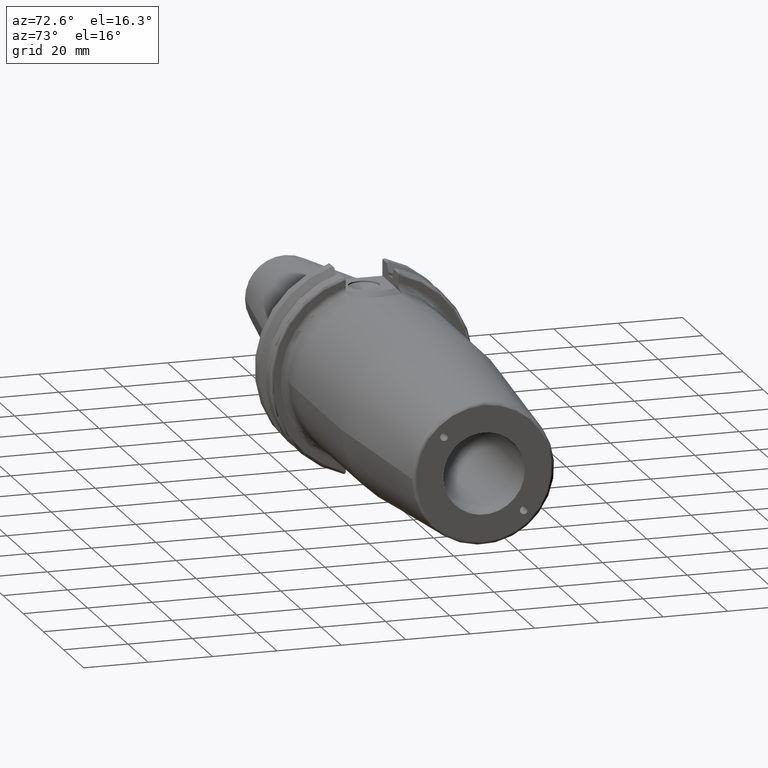
[diagram: clean part render]
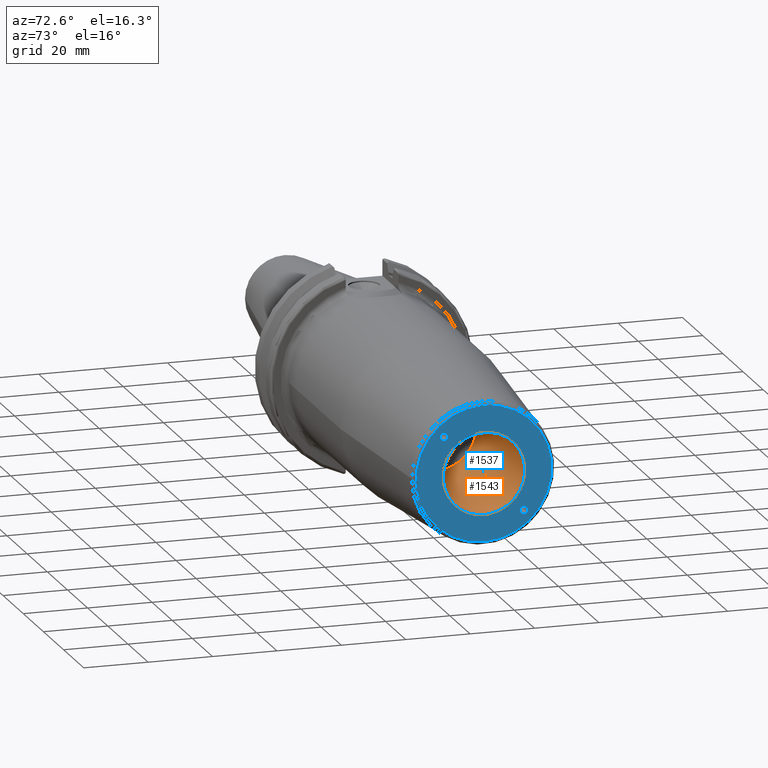
[diagram: same view with the hole feature highlighted: cylindrical wall and planar end face, labeled with their STEP entity ids]
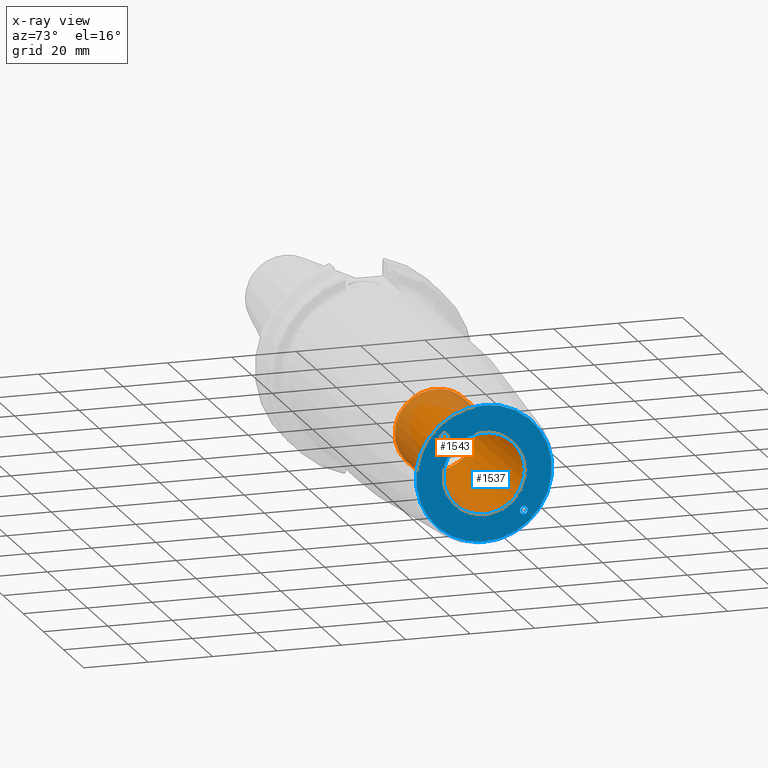
[diagram: x-ray of the same camera — body ghosted, the hole faces saturated]
A machine part, auxiliary view. The highlighted faces form one hole feature of diameter 25.4 mm: the cylindrical wall (entity #1543, orange) and its adjacent planar end face (entity #1537, blue) — they share a circular edge in the B-rep.
The next image is the same camera in x-ray (body ghosted, the hole faces saturated) — the bore reads through the body.
Wall:
#141=FACE_OUTER_BOUND('',#237,.T.);
#237=EDGE_LOOP('',(#1088,#1089,#1090,#1091));
#338=CIRCLE('',#1667,12.7);
#345=CIRCLE('',#1680,12.7);
#416=LINE('',#2543,#504);
#504=VECTOR('',#1922,12.7);
#639=VERTEX_POINT('',#2416);
#652=VERTEX_POINT('',#2542);
#804=EDGE_CURVE('',#639,#639,#338,.T.);
#822=EDGE_CURVE('',#639,#652,#416,.T.);
#823=EDGE_CURVE('',#652,#652,#345,.T.);
#1088=ORIENTED_EDGE('',*,*,#804,.T.);
#1089=ORIENTED_EDGE('',*,*,#822,.T.);
#1090=ORIENTED_EDGE('',*,*,#823,.F.);
#1091=ORIENTED_EDGE('',*,*,#822,.F.);
#1502=CYLINDRICAL_SURFACE('',#1679,12.7);
#1543=ADVANCED_FACE('',(#141),#1502,.F.);
#1667=AXIS2_PLACEMENT_3D('',#2417,#1892,#1893);
#1679=AXIS2_PLACEMENT_3D('',#2541,#1920,#1921);
#1680=AXIS2_PLACEMENT_3D('',#2544,#1923,#1924);
#1892=DIRECTION('center_axis',(1.,0.,0.));
#1893=DIRECTION('ref_axis',(0.,0.,-1.));
#1920=DIRECTION('center_axis',(1.,0.,0.));
#1921=DIRECTION('ref_axis',(0.,1.,0.));
#1922=DIRECTION('',(-1.,0.,0.));
#1923=DIRECTION('center_axis',(1.,0.,0.));
#1924=DIRECTION('ref_axis',(0.,0.,-1.));
#2416=CARTESIAN_POINT('',(130.,-12.7,-1.55530143491714E-15));
#2417=CARTESIAN_POINT('Origin',(130.,0.,0.));
#2541=CARTESIAN_POINT('Origin',(106.,0.,0.));
#2542=CARTESIAN_POINT('',(82.,-12.7,-1.55530143491714E-15));
#2543=CARTESIAN_POINT('',(106.,-12.7,-1.55530143491714E-15));
#2544=CARTESIAN_POINT('Origin',(82.,0.,0.));
End face:
#31=FACE_BOUND('',#227,.T.);
#32=FACE_BOUND('',#228,.T.);
#33=FACE_BOUND('',#229,.T.);
#48=PLANE('',#1666);
#82=ELLIPSE('',#1656,1.2302494347154,1.2295);
#83=ELLIPSE('',#1660,1.2302494347154,1.2295);
#135=FACE_OUTER_BOUND('',#226,.T.);
#226=EDGE_LOOP('',(#1056));
#227=EDGE_LOOP('',(#1057));
#228=EDGE_LOOP('',(#1058));
#229=EDGE_LOOP('',(#1059));
#334=CIRCLE('',#1662,21.0756095083418);
#338=CIRCLE('',#1667,12.7);
#632=VERTEX_POINT('',#2395);
#635=VERTEX_POINT('',#2404);
#636=VERTEX_POINT('',#2408);
#639=VERTEX_POINT('',#2416);
#794=EDGE_CURVE('',#632,#632,#82,.T.);
#798=EDGE_CURVE('',#635,#635,#83,.T.);
#800=EDGE_CURVE('',#636,#636,#334,.T.);
#804=EDGE_CURVE('',#639,#639,#338,.T.);
#1056=ORIENTED_EDGE('',*,*,#800,.F.);
#1057=ORIENTED_EDGE('',*,*,#794,.T.);
#1058=ORIENTED_EDGE('',*,*,#798,.T.);
#1059=ORIENTED_EDGE('',*,*,#804,.F.);
#1537=ADVANCED_FACE('',(#135,#31,#32,#33),#48,.T.);
#1656=AXIS2_PLACEMENT_3D('',#2396,#1867,#1868);
#1660=AXIS2_PLACEMENT_3D('',#2405,#1877,#1878);
#1662=AXIS2_PLACEMENT_3D('',#2409,#1882,#1883);
#1666=AXIS2_PLACEMENT_3D('',#2415,#1890,#1891);
#1667=AXIS2_PLACEMENT_3D('',#2417,#1892,#1893);
#1867=DIRECTION('center_axis',(-1.,0.,0.));
#1868=DIRECTION('ref_axis',(0.,-0.707106781186452,0.707106781186643));
#1877=DIRECTION('center_axis',(-1.,0.,0.));
#1878=DIRECTION('ref_axis',(0.,0.707106781186452,-0.707106781186643));
#1882=DIRECTION('center_axis',(-1.,0.,0.));
#1883=DIRECTION('ref_axis',(0.,-1.,1.83697019872103E-16));
#1890=DIRECTION('center_axis',(1.,0.,0.));
#1891=DIRECTION('ref_axis',(0.,0.,-1.));
#1892=DIRECTION('center_axis',(1.,0.,0.));
#1893=DIRECTION('ref_axis',(0.,0.,-1.));
#2395=CARTESIAN_POINT('',(130.,-11.1444938963226,12.373619236084));
#2396=CARTESIAN_POINT('Origin',(130.,-12.3743686707646,12.3743686707646));
#2404=CARTESIAN_POINT('',(130.,11.1444938963226,-12.373619236084));
#2405=CARTESIAN_POINT('Origin',(130.,12.3743686707646,-12.3743686707646));
#2408=CARTESIAN_POINT('',(130.,-2.58101777244703E-15,21.0756095083418));
#2409=CARTESIAN_POINT('Origin',(130.,0.,0.));
#2415=CARTESIAN_POINT('Origin',(130.,12.7,0.));
#2416=CARTESIAN_POINT('',(130.,-12.7,-1.55530143491714E-15));
#2417=CARTESIAN_POINT('Origin',(130.,0.,0.));